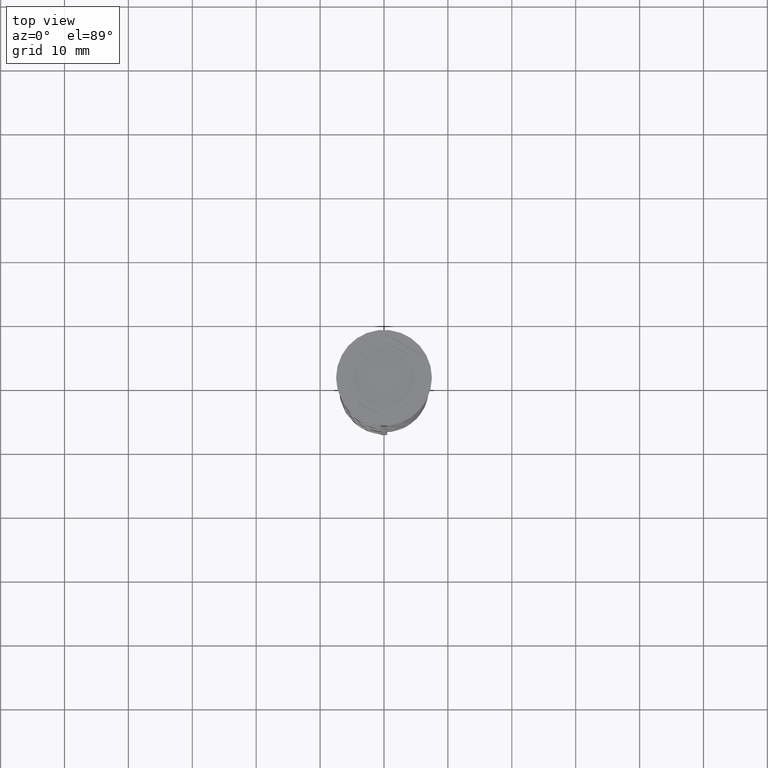
[diagram: clean part render]
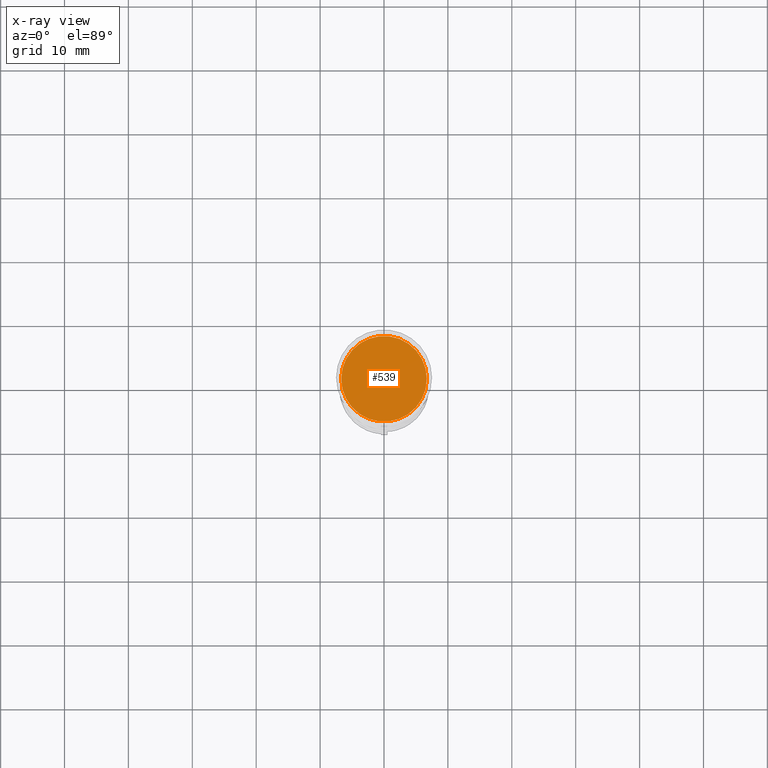
[diagram: x-ray — body ghosted, one internal face saturated and labeled with its STEP entity id]
A machine part, top view, then the same camera in x-ray: the body is ghosted and one INTERNAL B-rep face — a face not visible from any outside direction — is saturated and labeled: STEP entity #539.
In plain terms, the highlighted planar face has unit normal (0, 0, -1).
Its self-contained STEP definition (entity closure, byte-faithful):
#28 = DIRECTION ( 'NONE',  ( -1.000000000000000000, 0.000000000000000000, 0.000000000000000000 ) ) ;
#70 = CARTESIAN_POINT ( 'NONE',  ( -6.700000000000001066, 0.000000000000000000, -10.50000000000000178 ) ) ;
#84 = AXIS2_PLACEMENT_3D ( 'NONE', #1224, #627, #28 ) ;
#91 = EDGE_CURVE ( 'NONE', #3442, #2653, #1920, .T. ) ;
#120 = ORIENTED_EDGE ( 'NONE', *, *, #91, .T. ) ;
#399 = EDGE_LOOP ( 'NONE', ( #3168, #120 ) ) ;
#539 = ADVANCED_FACE ( 'NONE', ( #2102 ), #1037, .F. ) ;
#627 = DIRECTION ( 'NONE',  ( -0.000000000000000000, -0.000000000000000000, 1.000000000000000000 ) ) ;
#838 = AXIS2_PLACEMENT_3D ( 'NONE', #2014, #3126, #1740 ) ;
#1037 = PLANE ( 'NONE',  #1478 ) ;
#1224 = CARTESIAN_POINT ( 'NONE',  ( 0.000000000000000000, 0.000000000000000000, -10.50000000000000178 ) ) ;
#1244 = DIRECTION ( 'NONE',  ( -1.000000000000000000, 0.000000000000000000, -0.000000000000000000 ) ) ;
#1478 = AXIS2_PLACEMENT_3D ( 'NONE', #2326, #3234, #1244 ) ;
#1740 = DIRECTION ( 'NONE',  ( -1.000000000000000000, 0.000000000000000000, 0.000000000000000000 ) ) ;
#1920 = CIRCLE ( 'NONE', #838, 6.700000000000001066 ) ;
#1999 = EDGE_CURVE ( 'NONE', #2653, #3442, #3449, .T. ) ;
#2014 = CARTESIAN_POINT ( 'NONE',  ( 0.000000000000000000, 0.000000000000000000, -10.50000000000000178 ) ) ;
#2102 = FACE_OUTER_BOUND ( 'NONE', #399, .T. ) ;
#2326 = CARTESIAN_POINT ( 'NONE',  ( 0.000000000000000000, 0.000000000000000000, -10.50000000000000178 ) ) ;
#2653 = VERTEX_POINT ( 'NONE', #70 ) ;
#3126 = DIRECTION ( 'NONE',  ( -0.000000000000000000, -0.000000000000000000, 1.000000000000000000 ) ) ;
#3139 = CARTESIAN_POINT ( 'NONE',  ( 6.700000000000001066, 8.388830574159370862E-16, -10.50000000000000178 ) ) ;
#3168 = ORIENTED_EDGE ( 'NONE', *, *, #1999, .T. ) ;
#3234 = DIRECTION ( 'NONE',  ( 0.000000000000000000, 0.000000000000000000, -1.000000000000000000 ) ) ;
#3442 = VERTEX_POINT ( 'NONE', #3139 ) ;
#3449 = CIRCLE ( 'NONE', #84, 6.700000000000001066 ) ;